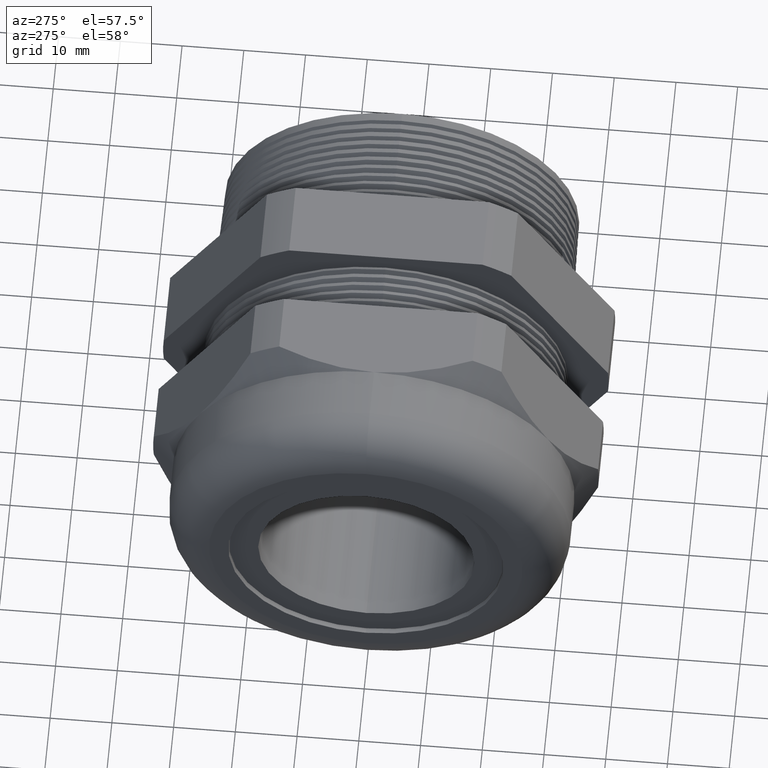
[diagram: clean part render]
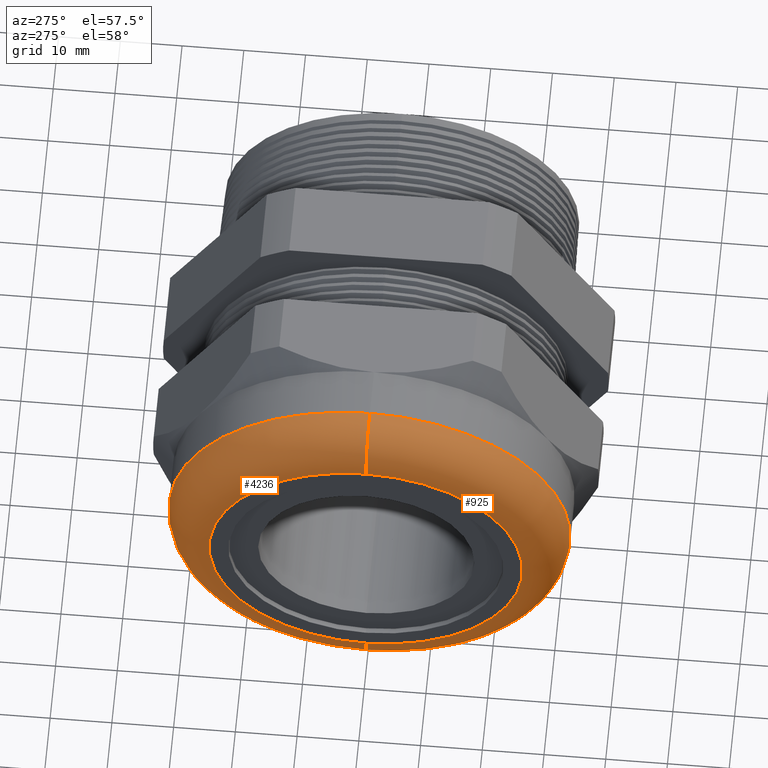
[diagram: same view with one multi-face feature highlighted, each face labeled with its STEP entity id]
A machine part, auxiliary view. The highlighted faces form ONE feature: a constant-radius fillet chain: 2 tangent blend faces with common blend radius 7.112 mm. The faces share edges in the B-rep.
Their STEP definitions:
[1] entity #4236 (Torus):
#15 = VERTEX_POINT ( 'NONE', #248 ) ;
#20 = ORIENTED_EDGE ( 'NONE', *, *, #21, .F. ) ;
#21 = EDGE_CURVE ( 'NONE', #4224, #15, #298, .T. ) ;
#47 = EDGE_CURVE ( 'NONE', #15, #4229, #311, .T. ) ;
#48 = ORIENTED_EDGE ( 'NONE', *, *, #47, .F. ) ;
#243 = CARTESIAN_POINT ( 'NONE',  ( -1.959999999999999500, 0.0000000000000000000, 1.000000000000000000 ) ) ;
#248 = CARTESIAN_POINT ( 'NONE',  ( -2.239999999999999800, 0.0000000000000000000, 1.000000000000000000 ) ) ;
#295 = DIRECTION ( 'NONE',  ( 0.0000000000000000000, 0.0000000000000000000, -1.000000000000000000 ) ) ;
#296 = DIRECTION ( 'NONE',  ( 0.0000000000000000000, -1.000000000000000000, 0.0000000000000000000 ) ) ;
#297 = AXIS2_PLACEMENT_3D ( 'NONE', #243, #296, #295 ) ;
#298 = CIRCLE ( 'NONE', #297, 0.2800000000000000300 ) ;
#308 = DIRECTION ( 'NONE',  ( 0.0000000000000000000, 0.0000000000000000000, 1.000000000000000000 ) ) ;
#309 = DIRECTION ( 'NONE',  ( -1.000000000000000000, 0.0000000000000000000, 0.0000000000000000000 ) ) ;
#310 = AXIS2_PLACEMENT_3D ( 'NONE', #317, #309, #308 ) ;
#311 = CIRCLE ( 'NONE', #310, 1.000000000000000000 ) ;
#317 = CARTESIAN_POINT ( 'NONE',  ( -2.239999999999999800, 0.0000000000000000000, 0.0000000000000000000 ) ) ;
#3495 = DIRECTION ( 'NONE',  ( 0.0000000000000000000, -1.224646799147353000E-016, 1.000000000000000000 ) ) ;
#3496 = DIRECTION ( 'NONE',  ( 0.0000000000000000000, 1.000000000000000000, 1.224646799147353200E-016 ) ) ;
#3497 = CARTESIAN_POINT ( 'NONE',  ( -1.959999999999999500, 1.224646799147353200E-016, -1.000000000000000000 ) ) ;
#3498 = AXIS2_PLACEMENT_3D ( 'NONE', #3497, #3496, #3495 ) ;
#3499 = CIRCLE ( 'NONE', #3498, 0.2800000000000000300 ) ;
#3748 = CARTESIAN_POINT ( 'NONE',  ( -1.959999999999999500, 1.567547902908612300E-016, 1.280000000000000000 ) ) ;
#3791 = DIRECTION ( 'NONE',  ( 0.0000000000000000000, 0.0000000000000000000, 1.000000000000000000 ) ) ;
#3792 = DIRECTION ( 'NONE',  ( -1.000000000000000000, 0.0000000000000000000, 0.0000000000000000000 ) ) ;
#3793 = AXIS2_PLACEMENT_3D ( 'NONE', #3795, #3792, #3791 ) ;
#3794 = TOROIDAL_SURFACE ( 'NONE', #3793, 1.000000000000000000, 0.2800000000000000300 ) ;
#3795 = CARTESIAN_POINT ( 'NONE',  ( -1.959999999999999500, 0.0000000000000000000, 0.0000000000000000000 ) ) ;
#3796 = FACE_OUTER_BOUND ( 'NONE', #4225, .T. ) ;
#3797 = CARTESIAN_POINT ( 'NONE',  ( -1.959999999999999500, 0.0000000000000000000, -1.280000000000000000 ) ) ;
#3800 = CARTESIAN_POINT ( 'NONE',  ( -2.239999999999999800, 1.396097351027982800E-016, -1.000000000000000000 ) ) ;
#3801 = DIRECTION ( 'NONE',  ( 0.0000000000000000000, 0.0000000000000000000, 1.000000000000000000 ) ) ;
#3802 = DIRECTION ( 'NONE',  ( 1.000000000000000000, 0.0000000000000000000, 0.0000000000000000000 ) ) ;
#3803 = CARTESIAN_POINT ( 'NONE',  ( -1.959999999999999500, 0.0000000000000000000, 0.0000000000000000000 ) ) ;
#3804 = AXIS2_PLACEMENT_3D ( 'NONE', #3803, #3802, #3801 ) ;
#3805 = CIRCLE ( 'NONE', #3804, 1.280000000000000000 ) ;
#4224 = VERTEX_POINT ( 'NONE', #3748 ) ;
#4225 = EDGE_LOOP ( 'NONE', ( #4230, #4227, #48, #20 ) ) ;
#4226 = EDGE_CURVE ( 'NONE', #4233, #4229, #3499, .T. ) ;
#4227 = ORIENTED_EDGE ( 'NONE', *, *, #4226, .T. ) ;
#4228 = EDGE_CURVE ( 'NONE', #4233, #4224, #3805, .T. ) ;
#4229 = VERTEX_POINT ( 'NONE', #3800 ) ;
#4230 = ORIENTED_EDGE ( 'NONE', *, *, #4228, .F. ) ;
#4233 = VERTEX_POINT ( 'NONE', #3797 ) ;
#4236 = ADVANCED_FACE ( 'NONE', ( #3796 ), #3794, .T. ) ;
[2] entity #925 (Torus):
#15 = VERTEX_POINT ( 'NONE', #248 ) ;
#21 = EDGE_CURVE ( 'NONE', #4224, #15, #298, .T. ) ;
#80 = EDGE_CURVE ( 'NONE', #4224, #4233, #377, .T. ) ;
#243 = CARTESIAN_POINT ( 'NONE',  ( -1.959999999999999500, 0.0000000000000000000, 1.000000000000000000 ) ) ;
#248 = CARTESIAN_POINT ( 'NONE',  ( -2.239999999999999800, 0.0000000000000000000, 1.000000000000000000 ) ) ;
#295 = DIRECTION ( 'NONE',  ( 0.0000000000000000000, 0.0000000000000000000, -1.000000000000000000 ) ) ;
#296 = DIRECTION ( 'NONE',  ( 0.0000000000000000000, -1.000000000000000000, 0.0000000000000000000 ) ) ;
#297 = AXIS2_PLACEMENT_3D ( 'NONE', #243, #296, #295 ) ;
#298 = CIRCLE ( 'NONE', #297, 0.2800000000000000300 ) ;
#374 = DIRECTION ( 'NONE',  ( 0.0000000000000000000, 0.0000000000000000000, 1.000000000000000000 ) ) ;
#375 = DIRECTION ( 'NONE',  ( 1.000000000000000000, 0.0000000000000000000, 0.0000000000000000000 ) ) ;
#376 = AXIS2_PLACEMENT_3D ( 'NONE', #383, #375, #374 ) ;
#377 = CIRCLE ( 'NONE', #376, 1.280000000000000000 ) ;
#383 = CARTESIAN_POINT ( 'NONE',  ( -1.959999999999999500, 0.0000000000000000000, 0.0000000000000000000 ) ) ;
#925 = ADVANCED_FACE ( 'NONE', ( #2088 ), #2087, .T. ) ;
#1516 = EDGE_CURVE ( 'NONE', #4229, #15, #3187, .T. ) ;
#1668 = ORIENTED_EDGE ( 'NONE', *, *, #1516, .F. ) ;
#1670 = ORIENTED_EDGE ( 'NONE', *, *, #21, .T. ) ;
#1671 = ORIENTED_EDGE ( 'NONE', *, *, #80, .F. ) ;
#1672 = EDGE_LOOP ( 'NONE', ( #1675, #1671, #1670, #1668 ) ) ;
#1675 = ORIENTED_EDGE ( 'NONE', *, *, #4226, .F. ) ;
#2086 = AXIS2_PLACEMENT_3D ( 'NONE', #2150, #2149, #2148 ) ;
#2087 = TOROIDAL_SURFACE ( 'NONE', #2086, 1.000000000000000000, 0.2800000000000000300 ) ;
#2088 = FACE_OUTER_BOUND ( 'NONE', #1672, .T. ) ;
#2148 = DIRECTION ( 'NONE',  ( 0.0000000000000000000, 0.0000000000000000000, 1.000000000000000000 ) ) ;
#2149 = DIRECTION ( 'NONE',  ( -1.000000000000000000, 0.0000000000000000000, 0.0000000000000000000 ) ) ;
#2150 = CARTESIAN_POINT ( 'NONE',  ( -1.959999999999999500, 0.0000000000000000000, 0.0000000000000000000 ) ) ;
#3179 = DIRECTION ( 'NONE',  ( 0.0000000000000000000, 0.0000000000000000000, 1.000000000000000000 ) ) ;
#3180 = DIRECTION ( 'NONE',  ( -1.000000000000000000, 0.0000000000000000000, 0.0000000000000000000 ) ) ;
#3181 = CARTESIAN_POINT ( 'NONE',  ( -2.239999999999999800, 0.0000000000000000000, 0.0000000000000000000 ) ) ;
#3182 = AXIS2_PLACEMENT_3D ( 'NONE', #3181, #3180, #3179 ) ;
#3187 = CIRCLE ( 'NONE', #3182, 1.000000000000000000 ) ;
#3495 = DIRECTION ( 'NONE',  ( 0.0000000000000000000, -1.224646799147353000E-016, 1.000000000000000000 ) ) ;
#3496 = DIRECTION ( 'NONE',  ( 0.0000000000000000000, 1.000000000000000000, 1.224646799147353200E-016 ) ) ;
#3497 = CARTESIAN_POINT ( 'NONE',  ( -1.959999999999999500, 1.224646799147353200E-016, -1.000000000000000000 ) ) ;
#3498 = AXIS2_PLACEMENT_3D ( 'NONE', #3497, #3496, #3495 ) ;
#3499 = CIRCLE ( 'NONE', #3498, 0.2800000000000000300 ) ;
#3748 = CARTESIAN_POINT ( 'NONE',  ( -1.959999999999999500, 1.567547902908612300E-016, 1.280000000000000000 ) ) ;
#3797 = CARTESIAN_POINT ( 'NONE',  ( -1.959999999999999500, 0.0000000000000000000, -1.280000000000000000 ) ) ;
#3800 = CARTESIAN_POINT ( 'NONE',  ( -2.239999999999999800, 1.396097351027982800E-016, -1.000000000000000000 ) ) ;
#4224 = VERTEX_POINT ( 'NONE', #3748 ) ;
#4226 = EDGE_CURVE ( 'NONE', #4233, #4229, #3499, .T. ) ;
#4229 = VERTEX_POINT ( 'NONE', #3800 ) ;
#4233 = VERTEX_POINT ( 'NONE', #3797 ) ;